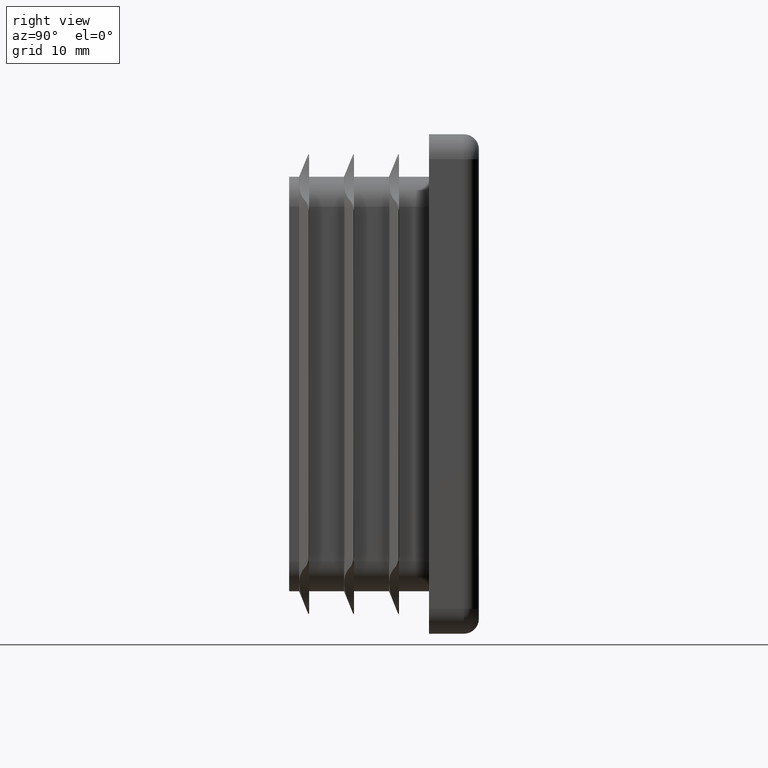
[diagram: clean part render]
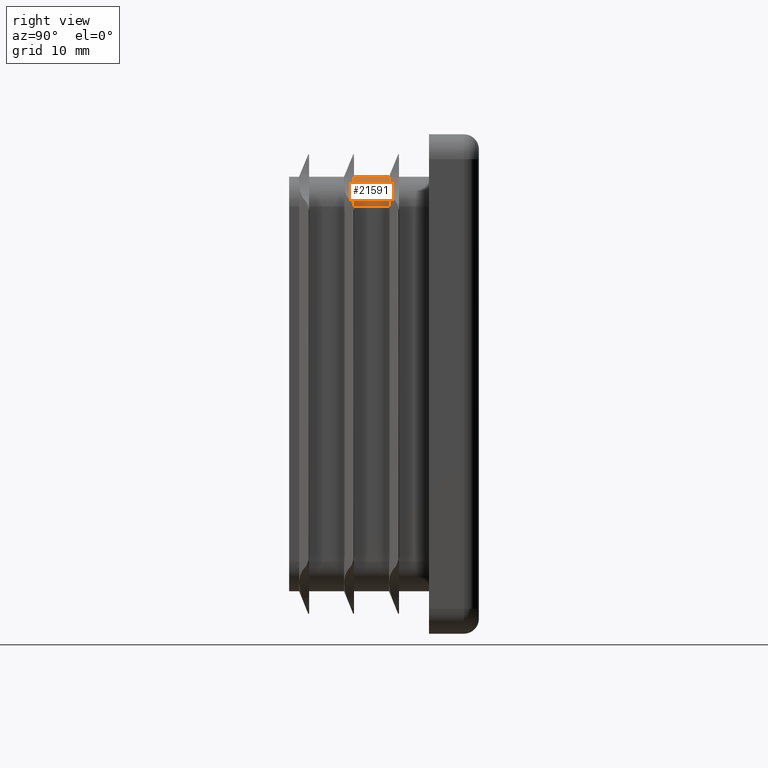
[diagram: same view with one face highlighted and labeled with its STEP entity id]
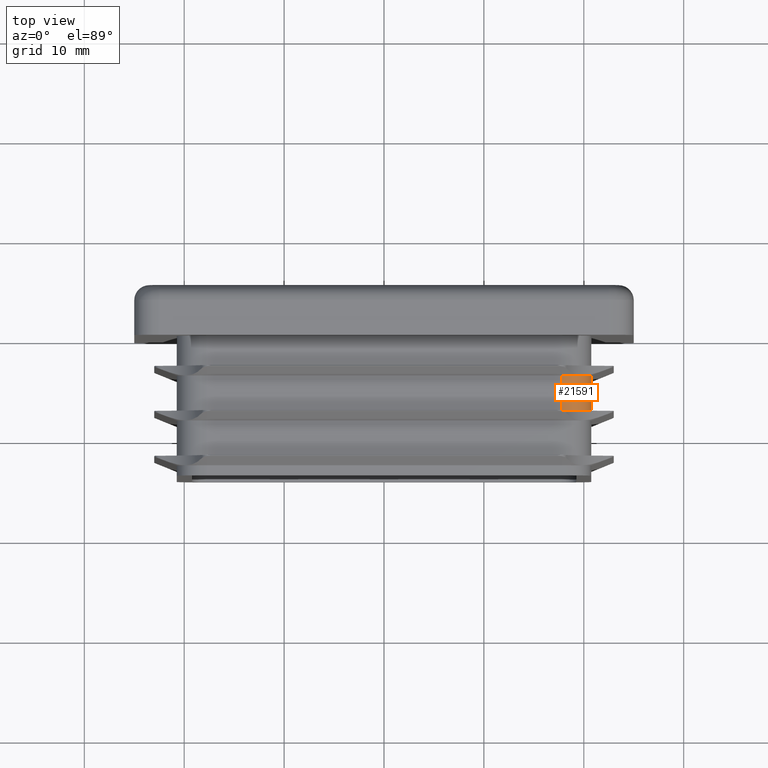
[diagram: same view with one face highlighted and labeled with its STEP entity id]
A machine part, right view. The second image highlights one B-rep face of the part: STEP entity #21591.
A second angle (top view) of the same face is appended — the face is thin or edge-on in the first view.
In plain terms, the highlighted cylindrical surface (edge-blend (fillet) strip) has radius 3 mm, axis along (-0, 1, -0).
Its self-contained STEP definition (entity closure, byte-faithful):
#41 = EDGE_CURVE ( 'NONE', #4646, #14287, #14078, .T. ) ;
#523 = CARTESIAN_POINT ( 'NONE',  ( 20.74999999999999645, -14.00000000000000000, 17.75000000000000000 ) ) ;
#867 = CYLINDRICAL_SURFACE ( 'NONE', #13228, 3.000000000000002665 ) ;
#1370 = ORIENTED_EDGE ( 'NONE', *, *, #41, .T. ) ;
#1408 = CARTESIAN_POINT ( 'NONE',  ( 17.74999999999999645, -4.000000000000000888, 17.75000000000000000 ) ) ;
#1499 = CIRCLE ( 'NONE', #18237, 3.000000000000002665 ) ;
#2205 = CARTESIAN_POINT ( 'NONE',  ( 17.74999999999999645, -7.500000000000001776, 17.75000000000000000 ) ) ;
#2255 = CARTESIAN_POINT ( 'NONE',  ( 17.74999999999999645, -4.000000000000000888, 17.75000000000000000 ) ) ;
#2270 = EDGE_CURVE ( 'NONE', #13302, #21778, #2393, .T. ) ;
#2393 = CIRCLE ( 'NONE', #22509, 3.000000000000002665 ) ;
#2562 = CARTESIAN_POINT ( 'NONE',  ( 17.74999999999999645, -14.00000000000000000, 20.75000000000000000 ) ) ;
#2977 = DIRECTION ( 'NONE',  ( 0.000000000000000000, 0.000000000000000000, 1.000000000000000000 ) ) ;
#3124 = CARTESIAN_POINT ( 'NONE',  ( 17.74999999999999645, -7.500000000000001776, 17.75000000000000000 ) ) ;
#3252 = DIRECTION ( 'NONE',  ( 0.000000000000000000, 0.000000000000000000, 1.000000000000000000 ) ) ;
#3337 = EDGE_LOOP ( 'NONE', ( #12034, #10546, #14147, #19924, #21588, #1370 ) ) ;
#3374 = VECTOR ( 'NONE', #6119, 1000.000000000000000 ) ;
#3995 = DIRECTION ( 'NONE',  ( 0.000000000000000000, 1.000000000000000000, 0.000000000000000000 ) ) ;
#4042 = DIRECTION ( 'NONE',  ( 0.000000000000000000, 1.000000000000000000, 0.000000000000000000 ) ) ;
#4646 = VERTEX_POINT ( 'NONE', #8861 ) ;
#5103 = EDGE_CURVE ( 'NONE', #21778, #14287, #1499, .T. ) ;
#5323 = DIRECTION ( 'NONE',  ( -0.000000000000000000, 1.000000000000000000, -0.000000000000000000 ) ) ;
#5472 = CARTESIAN_POINT ( 'NONE',  ( 19.87132034355960641, -3.999999999999999112, 19.87132034355968457 ) ) ;
#6119 = DIRECTION ( 'NONE',  ( -0.000000000000000000, 1.000000000000000000, -0.000000000000000000 ) ) ;
#6618 = VECTOR ( 'NONE', #11176, 1000.000000000000000 ) ;
#6870 = DIRECTION ( 'NONE',  ( 0.000000000000000000, 0.000000000000000000, 1.000000000000000000 ) ) ;
#8148 = EDGE_CURVE ( 'NONE', #19134, #4646, #15027, .T. ) ;
#8497 = EDGE_CURVE ( 'NONE', #10239, #13302, #13636, .T. ) ;
#8846 = CARTESIAN_POINT ( 'NONE',  ( 19.87132034355963839, -7.500000000000001776, 19.87132034355971300 ) ) ;
#8861 = CARTESIAN_POINT ( 'NONE',  ( 20.74999999999999645, -7.500000000000001776, 17.75000000000000000 ) ) ;
#9213 = AXIS2_PLACEMENT_3D ( 'NONE', #2205, #3995, #16374 ) ;
#10239 = VERTEX_POINT ( 'NONE', #18855 ) ;
#10546 = ORIENTED_EDGE ( 'NONE', *, *, #2270, .F. ) ;
#10788 = CARTESIAN_POINT ( 'NONE',  ( 20.74999999999999645, -4.000000000000000000, 17.75000000000000000 ) ) ;
#11176 = DIRECTION ( 'NONE',  ( -0.000000000000000000, 1.000000000000000000, -0.000000000000000000 ) ) ;
#12034 = ORIENTED_EDGE ( 'NONE', *, *, #5103, .F. ) ;
#13228 = AXIS2_PLACEMENT_3D ( 'NONE', #14125, #5323, #6870 ) ;
#13302 = VERTEX_POINT ( 'NONE', #17549 ) ;
#13636 = LINE ( 'NONE', #2562, #3374 ) ;
#14078 = LINE ( 'NONE', #523, #6618 ) ;
#14125 = CARTESIAN_POINT ( 'NONE',  ( 17.74999999999999645, -14.00000000000000000, 17.75000000000000000 ) ) ;
#14147 = ORIENTED_EDGE ( 'NONE', *, *, #8497, .F. ) ;
#14287 = VERTEX_POINT ( 'NONE', #10788 ) ;
#14550 = DIRECTION ( 'NONE',  ( 0.000000000000000000, 0.000000000000000000, 1.000000000000000000 ) ) ;
#15027 = CIRCLE ( 'NONE', #20218, 3.000000000000051070 ) ;
#15424 = DIRECTION ( 'NONE',  ( 0.000000000000000000, 1.000000000000000000, 0.000000000000000000 ) ) ;
#16071 = CIRCLE ( 'NONE', #9213, 3.000000000000051070 ) ;
#16374 = DIRECTION ( 'NONE',  ( 0.000000000000000000, 0.000000000000000000, 1.000000000000000000 ) ) ;
#17549 = CARTESIAN_POINT ( 'NONE',  ( 17.74999999999999645, -4.000000000000000888, 20.75000000000000000 ) ) ;
#18015 = FACE_OUTER_BOUND ( 'NONE', #3337, .T. ) ;
#18237 = AXIS2_PLACEMENT_3D ( 'NONE', #2255, #4042, #14550 ) ;
#18855 = CARTESIAN_POINT ( 'NONE',  ( 17.74999999999999645, -7.500000000000001776, 20.75000000000000000 ) ) ;
#19134 = VERTEX_POINT ( 'NONE', #8846 ) ;
#19924 = ORIENTED_EDGE ( 'NONE', *, *, #21871, .T. ) ;
#20218 = AXIS2_PLACEMENT_3D ( 'NONE', #3124, #15424, #2977 ) ;
#21588 = ORIENTED_EDGE ( 'NONE', *, *, #8148, .T. ) ;
#21591 = ADVANCED_FACE ( 'NONE', ( #18015 ), #867, .T. ) ;
#21778 = VERTEX_POINT ( 'NONE', #5472 ) ;
#21871 = EDGE_CURVE ( 'NONE', #10239, #19134, #16071, .T. ) ;
#22509 = AXIS2_PLACEMENT_3D ( 'NONE', #1408, #22751, #3252 ) ;
#22751 = DIRECTION ( 'NONE',  ( 0.000000000000000000, 1.000000000000000000, 0.000000000000000000 ) ) ;